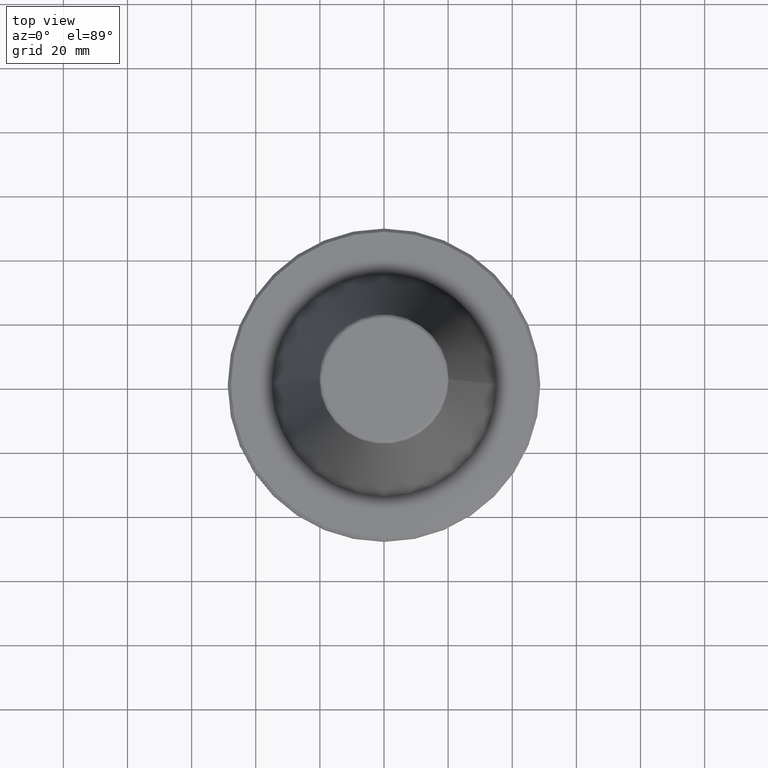
[diagram: clean part render]
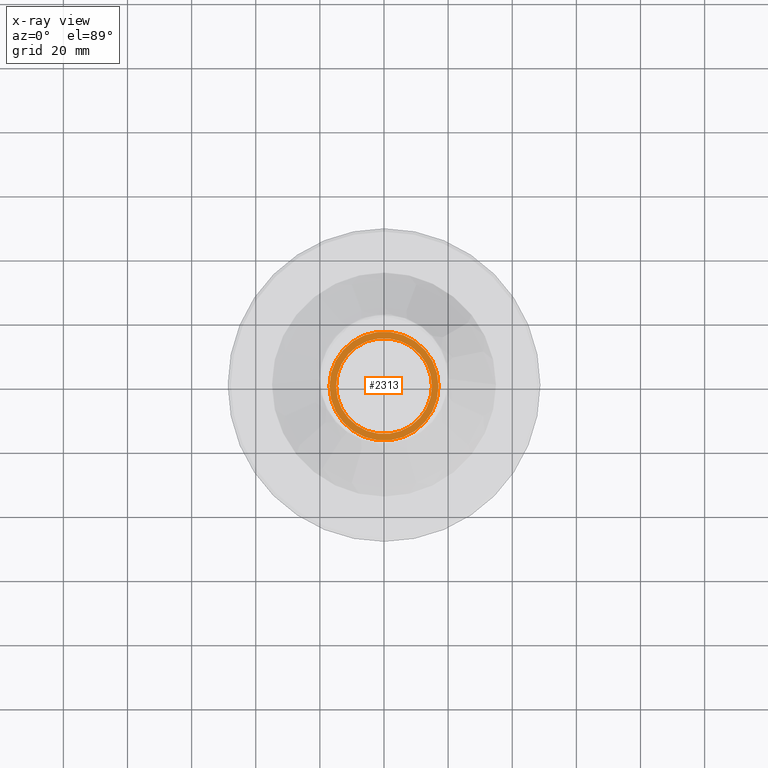
[diagram: x-ray — body ghosted, one internal face saturated and labeled with its STEP entity id]
A machine part, top view, then the same camera in x-ray: the body is ghosted and one INTERNAL B-rep face — a face not visible from any outside direction — is saturated and labeled: STEP entity #2313.
In plain terms, the highlighted planar face has unit normal (0, 0, -1).
Its self-contained STEP definition (entity closure, byte-faithful):
#193 = ORIENTED_EDGE ( 'NONE', *, *, #699, .T. ) ;
#313 = VERTEX_POINT ( 'NONE', #2379 ) ;
#594 = ORIENTED_EDGE ( 'NONE', *, *, #956, .T. ) ;
#614 = CARTESIAN_POINT ( 'NONE',  ( -17.00000000000000000, 2.081899558550500300E-015, -28.40000000000001300 ) ) ;
#699 = EDGE_CURVE ( 'NONE', #313, #2176, #2027, .T. ) ;
#743 = AXIS2_PLACEMENT_3D ( 'NONE', #1221, #1215, #1213 ) ;
#772 = CIRCLE ( 'NONE', #850, 17.00000000000000000 ) ;
#801 = EDGE_LOOP ( 'NONE', ( #193, #594 ) ) ;
#850 = AXIS2_PLACEMENT_3D ( 'NONE', #1411, #1410, #1407 ) ;
#909 = DIRECTION ( 'NONE',  ( -1.000000000000000000, 0.0000000000000000000, -0.0000000000000000000 ) ) ;
#929 = PLANE ( 'NONE',  #1067 ) ;
#956 = EDGE_CURVE ( 'NONE', #2176, #313, #1708, .T. ) ;
#994 = CARTESIAN_POINT ( 'NONE',  ( -14.94999999999999600, 1.830846964725292900E-015, -28.40000000000001300 ) ) ;
#998 = AXIS2_PLACEMENT_3D ( 'NONE', #1556, #1554, #1552 ) ;
#1000 = FACE_BOUND ( 'NONE', #801, .T. ) ;
#1038 = EDGE_LOOP ( 'NONE', ( #2473, #1506 ) ) ;
#1067 = AXIS2_PLACEMENT_3D ( 'NONE', #1071, #1508, #909 ) ;
#1071 = CARTESIAN_POINT ( 'NONE',  ( 0.0000000000000000000, -17.00000000000000000, -28.40000000000001300 ) ) ;
#1103 = EDGE_CURVE ( 'NONE', #1885, #2051, #772, .T. ) ;
#1213 = DIRECTION ( 'NONE',  ( 1.000000000000000000, 0.0000000000000000000, 0.0000000000000000000 ) ) ;
#1215 = DIRECTION ( 'NONE',  ( 0.0000000000000000000, 0.0000000000000000000, 1.000000000000000000 ) ) ;
#1221 = CARTESIAN_POINT ( 'NONE',  ( 0.0000000000000000000, 0.0000000000000000000, -28.40000000000001300 ) ) ;
#1252 = FACE_OUTER_BOUND ( 'NONE', #1038, .T. ) ;
#1285 = EDGE_CURVE ( 'NONE', #2051, #1885, #1860, .T. ) ;
#1407 = DIRECTION ( 'NONE',  ( 1.000000000000000000, 0.0000000000000000000, 0.0000000000000000000 ) ) ;
#1408 = AXIS2_PLACEMENT_3D ( 'NONE', #1850, #1847, #1846 ) ;
#1410 = DIRECTION ( 'NONE',  ( 0.0000000000000000000, 0.0000000000000000000, 1.000000000000000000 ) ) ;
#1411 = CARTESIAN_POINT ( 'NONE',  ( 0.0000000000000000000, 0.0000000000000000000, -28.40000000000001300 ) ) ;
#1506 = ORIENTED_EDGE ( 'NONE', *, *, #1103, .F. ) ;
#1508 = DIRECTION ( 'NONE',  ( 0.0000000000000000000, 0.0000000000000000000, -1.000000000000000000 ) ) ;
#1552 = DIRECTION ( 'NONE',  ( 1.000000000000000000, 0.0000000000000000000, 0.0000000000000000000 ) ) ;
#1554 = DIRECTION ( 'NONE',  ( 0.0000000000000000000, 0.0000000000000000000, 1.000000000000000000 ) ) ;
#1556 = CARTESIAN_POINT ( 'NONE',  ( 0.0000000000000000000, 0.0000000000000000000, -28.40000000000001300 ) ) ;
#1708 = CIRCLE ( 'NONE', #998, 14.94999999999999600 ) ;
#1846 = DIRECTION ( 'NONE',  ( 1.000000000000000000, 0.0000000000000000000, 0.0000000000000000000 ) ) ;
#1847 = DIRECTION ( 'NONE',  ( 0.0000000000000000000, 0.0000000000000000000, 1.000000000000000000 ) ) ;
#1850 = CARTESIAN_POINT ( 'NONE',  ( 0.0000000000000000000, 0.0000000000000000000, -28.40000000000001300 ) ) ;
#1860 = CIRCLE ( 'NONE', #743, 17.00000000000000000 ) ;
#1885 = VERTEX_POINT ( 'NONE', #614 ) ;
#2027 = CIRCLE ( 'NONE', #1408, 14.94999999999999600 ) ;
#2051 = VERTEX_POINT ( 'NONE', #2451 ) ;
#2176 = VERTEX_POINT ( 'NONE', #994 ) ;
#2313 = ADVANCED_FACE ( 'NONE', ( #1252, #1000 ), #929, .T. ) ;
#2379 = CARTESIAN_POINT ( 'NONE',  ( 14.94999999999999600, 0.0000000000000000000, -28.40000000000001300 ) ) ;
#2451 = CARTESIAN_POINT ( 'NONE',  ( 17.00000000000000000, 0.0000000000000000000, -28.40000000000001300 ) ) ;
#2473 = ORIENTED_EDGE ( 'NONE', *, *, #1285, .F. ) ;